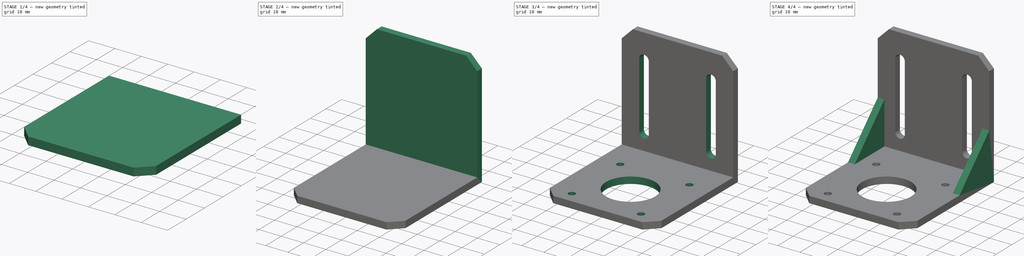
[diagram: build sequence overview — one tinted view per stage of 4, left to right]
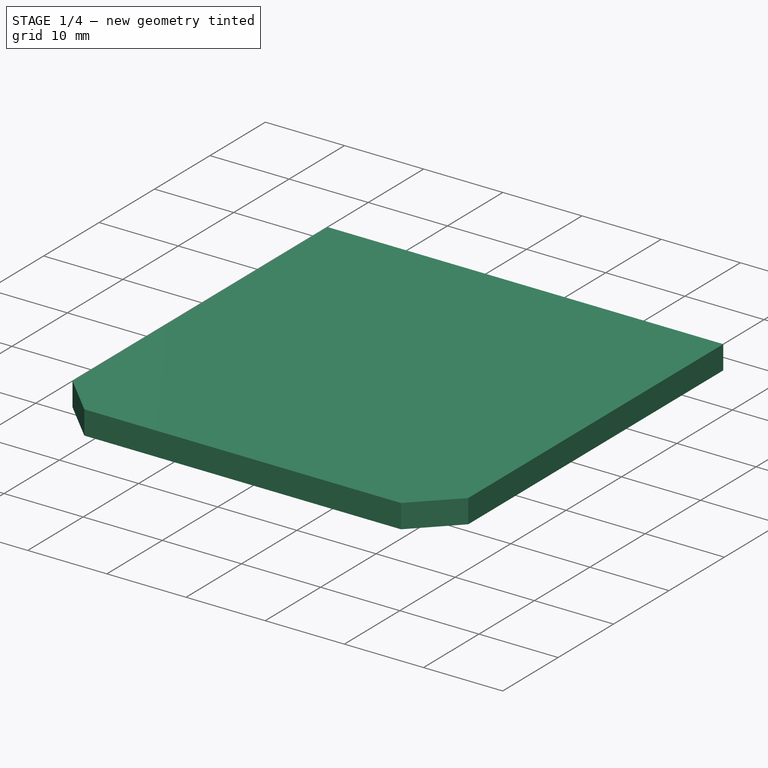
[diagram: stage 1 of 4 — iso view after this stage's code; geometry added in this stage tinted green]
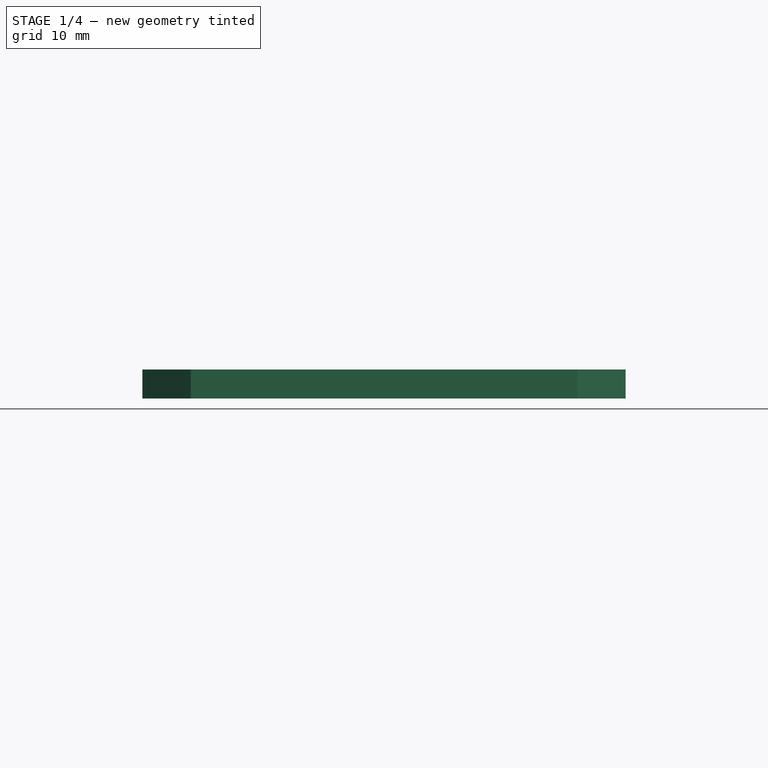
[diagram: stage 1 of 4 — front view after this stage's code; geometry added in this stage tinted green]
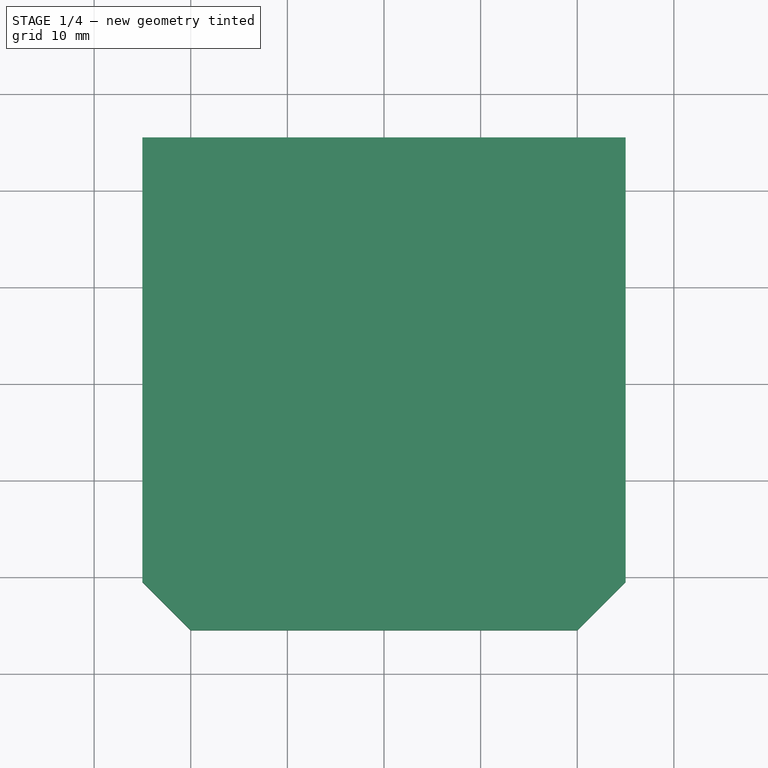
[diagram: stage 1 of 4 — top view after this stage's code; geometry added in this stage tinted green]
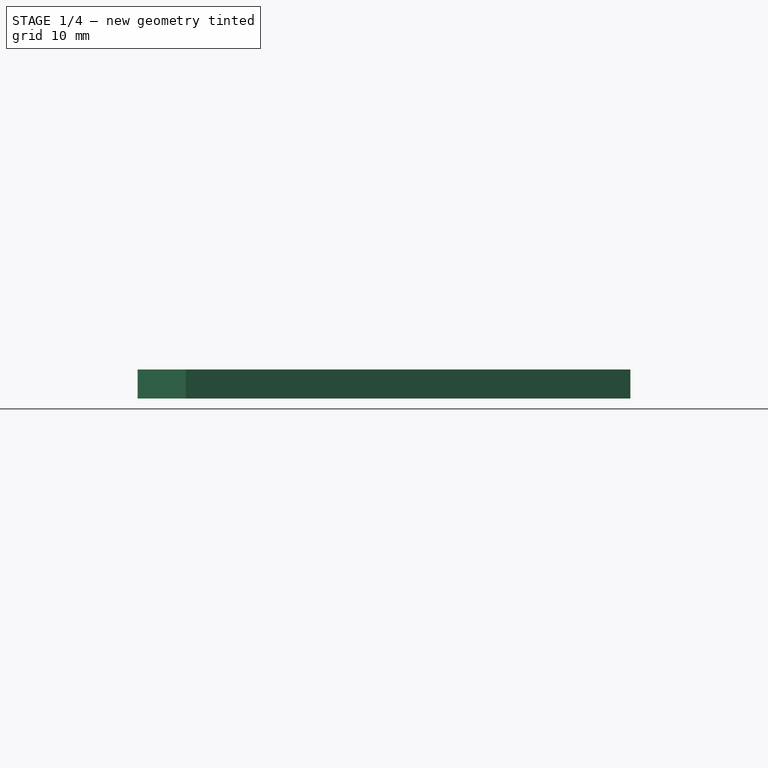
[diagram: stage 1 of 4 — right view after this stage's code; geometry added in this stage tinted green]
FCSTD DOCUMENT  (FreeCAD 0.19R)
Label: bracket_nema_17
License: All rights reserved
LicenseURL: http://en.wikipedia.org/wiki/All_rights_reserved
objects: PartDesign::CoordinateSystem×6, Sketcher::SketchObject×5, PartDesign::Pad×3, PartDesign::Pocket×3, PartDesign::Chamfer×2, PartDesign::Mirrored×1, PartDesign::Body×1
note: 29 computed .brp shape members not serialized (recipe doc carries the construction recipe); baked Part::Feature solids carry a one-line shape summary decoded from their .brp

FEATURE [Sketcher::SketchObject] Sketch
  FullyConstrained = true
  MapMode = 5
  Support = -> [XY_Plane]
  sketch-geometry (4):
    g0: LineSegment StartX=-25 StartY=25.5 StartZ=0 EndX=25 EndY=25.5 EndZ=0
    g1: LineSegment StartX=25 StartY=25.5 StartZ=0 EndX=25 EndY=-25.5 EndZ=0
    g2: LineSegment StartX=25 StartY=-25.5 StartZ=0 EndX=-25 EndY=-25.5 EndZ=0
    g3: LineSegment StartX=-25 StartY=-25.5 StartZ=0 EndX=-25 EndY=25.5 EndZ=0
  constraints (10):
    c: Coincident(g0,g1)
    c: Coincident(g1,g2)
    c: Coincident(g2,g3)
    c: Coincident(g3,g0)
    c: Symmetric(g0,g1,g-1)
    c: Symmetric(g0,g2,g-1)
    c: Vertical(g0,g1)
    c: Horizontal(g0,g0)
    c: DistanceX(g2,g2) = 50
    c: DistanceY(g1,g1) = 51
FEATURE [PartDesign::Pad] Pad
  Direction = (1,1,1)
  Length = 3
  Length2 = 100
  Profile = -> Sketch
  Refine = true
  Type = 0
FEATURE [PartDesign::Chamfer] Chamfer
  Angle = 45
  Base = -> Pad [Edge5,Edge8]
  BaseFeature = -> Pad
  ChamferType = 0
  FlipDirection = false
  Refine = true
  Size = 5
  Size2 = 1
  SupportTransform = false
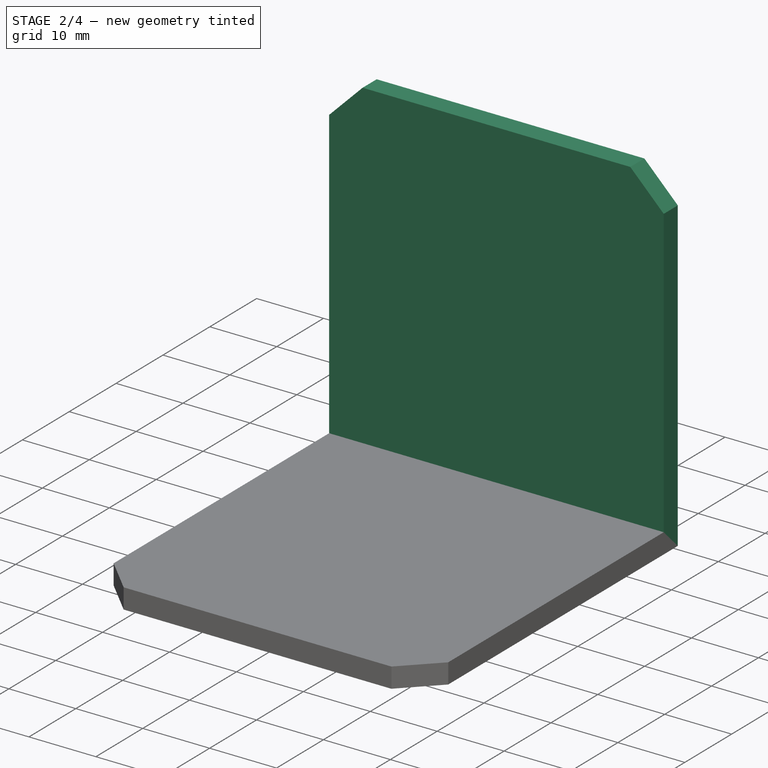
[diagram: stage 2 of 4 — iso view after this stage's code; geometry added in this stage tinted green]
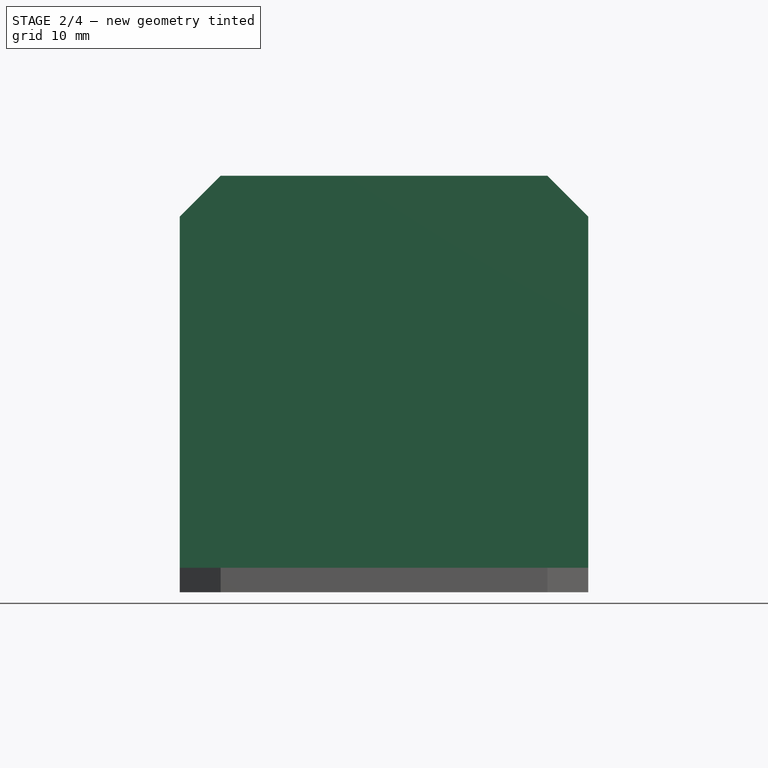
[diagram: stage 2 of 4 — front view after this stage's code; geometry added in this stage tinted green]
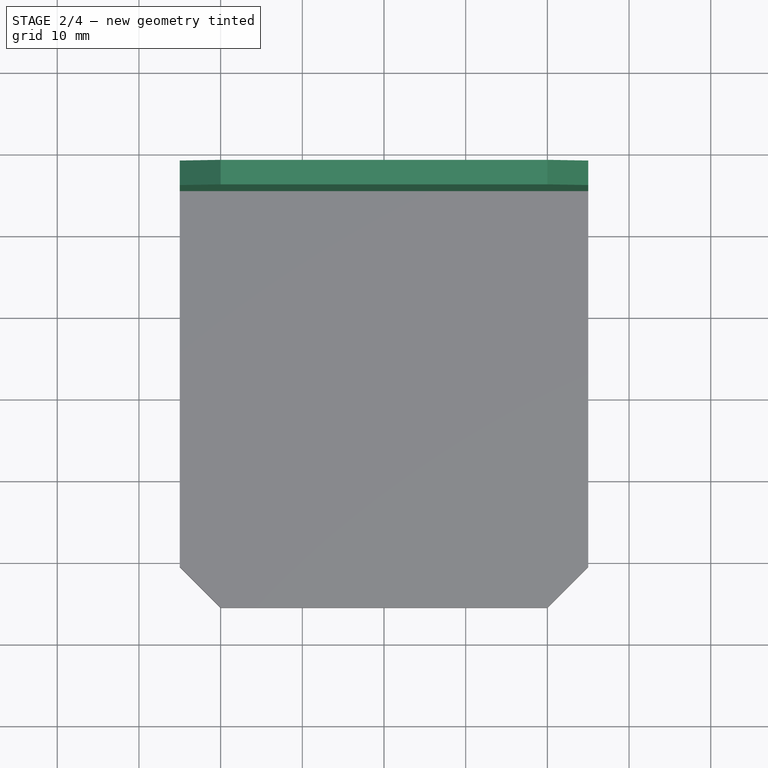
[diagram: stage 2 of 4 — top view after this stage's code; geometry added in this stage tinted green]
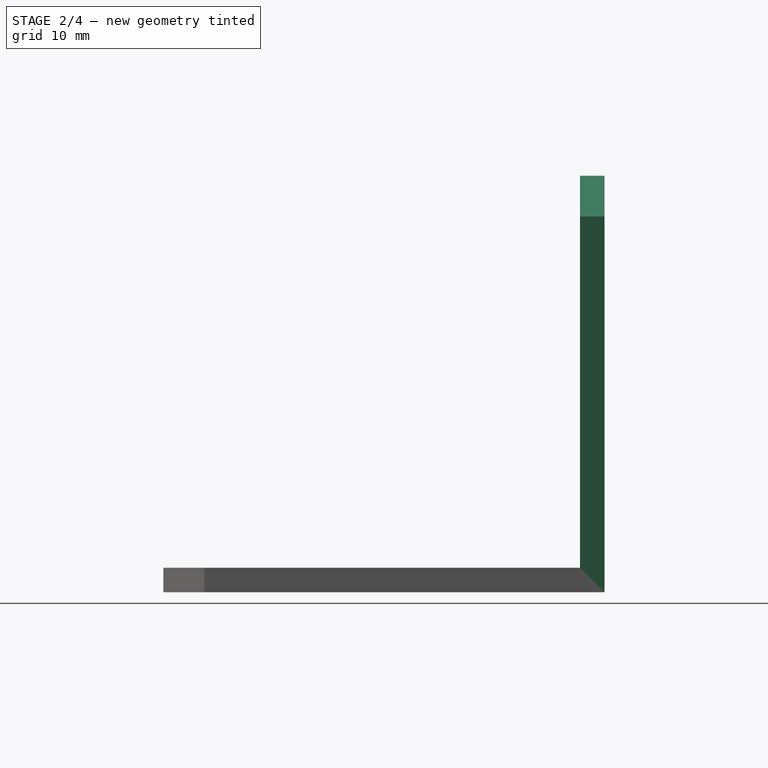
[diagram: stage 2 of 4 — right view after this stage's code; geometry added in this stage tinted green]
FEATURE [Sketcher::SketchObject] Sketch001
  ExternalGeometry = -> [Chamfer]
  FullyConstrained = true
  MapMode = 5
  Placement = pos=(0,25.5,0) rot=(0,0.707107,0.707107;3.14159rad)
  Support = -> [Chamfer]
  sketch-geometry (4):
    g0: LineSegment StartX=-25 StartY=0 StartZ=0 EndX=-25 EndY=51 EndZ=0
    g1: LineSegment StartX=-25 StartY=51 StartZ=0 EndX=25 EndY=51 EndZ=0
    g2: LineSegment StartX=25 StartY=51 StartZ=0 EndX=25 EndY=0 EndZ=0
    g3: LineSegment StartX=-25 StartY=0 StartZ=0 EndX=25 EndY=0 EndZ=0
  constraints (10):
    c: Coincident(g-3,g0)
    c: Vertical(g0)
    c: Coincident(g0,g1)
    c: Horizontal(g1)
    c: Coincident(g1,g2)
    c: Coincident(g2,g-3)
    c: Vertical(g2)
    c: DistanceY(g2,g2) = 51
    c: Coincident(g0,g3)
    c: Coincident(g3,g2)
FEATURE [PartDesign::Pad] Pad001
  BaseFeature = -> Chamfer
  Direction = (1,1,1)
  Length = 3
  Length2 = 100
  Profile = -> Sketch001
  Refine = true
  Type = 0
FEATURE [PartDesign::Chamfer] Chamfer001
  Angle = 45
  Base = -> Pad001 [Edge18,Edge17]
  BaseFeature = -> Pad001
  ChamferType = 0
  FlipDirection = false
  Refine = true
  Size = 5
  Size2 = 1
  SupportTransform = false
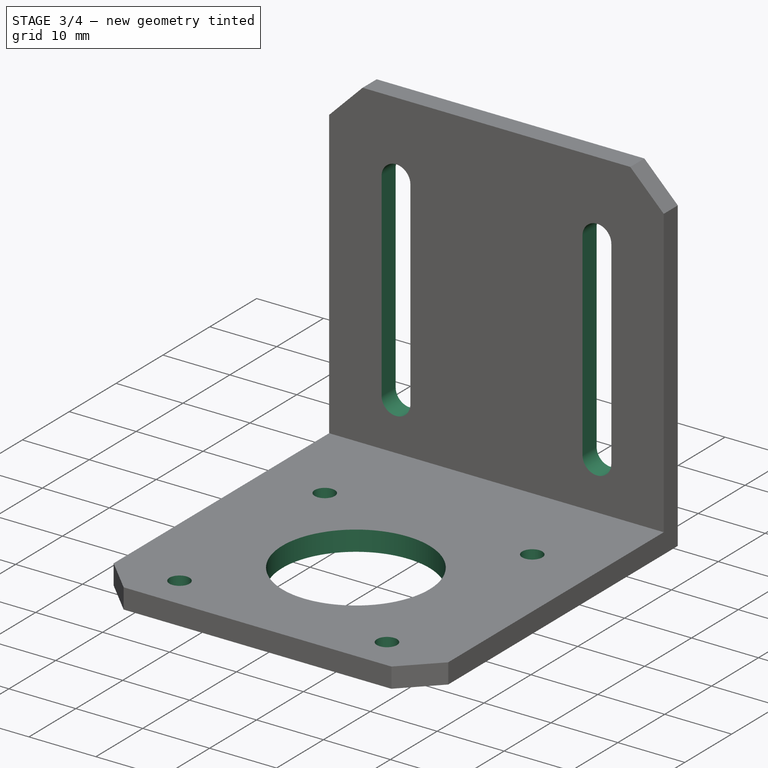
[diagram: stage 3 of 4 — iso view after this stage's code; geometry added in this stage tinted green]
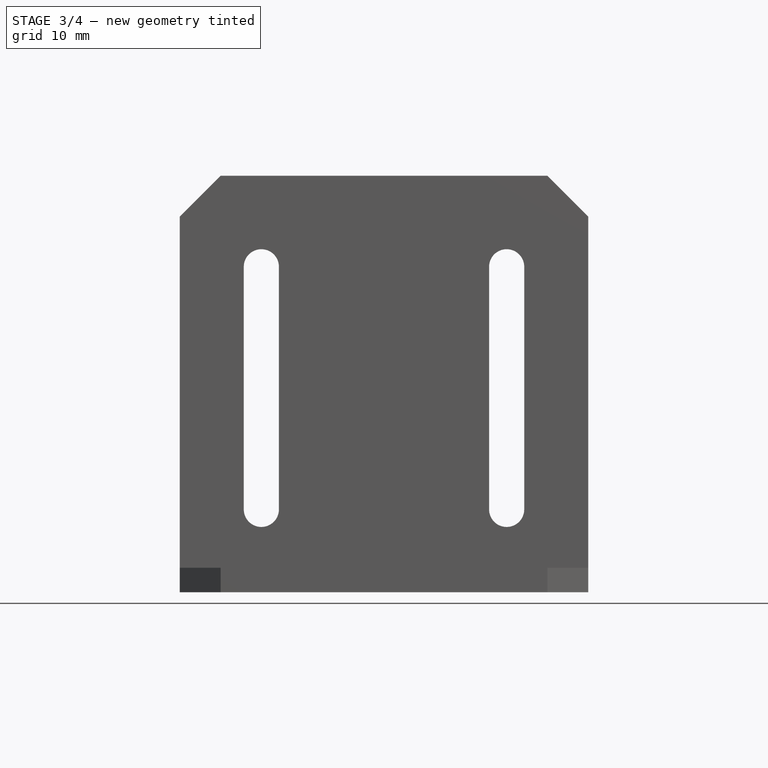
[diagram: stage 3 of 4 — front view after this stage's code; geometry added in this stage tinted green]
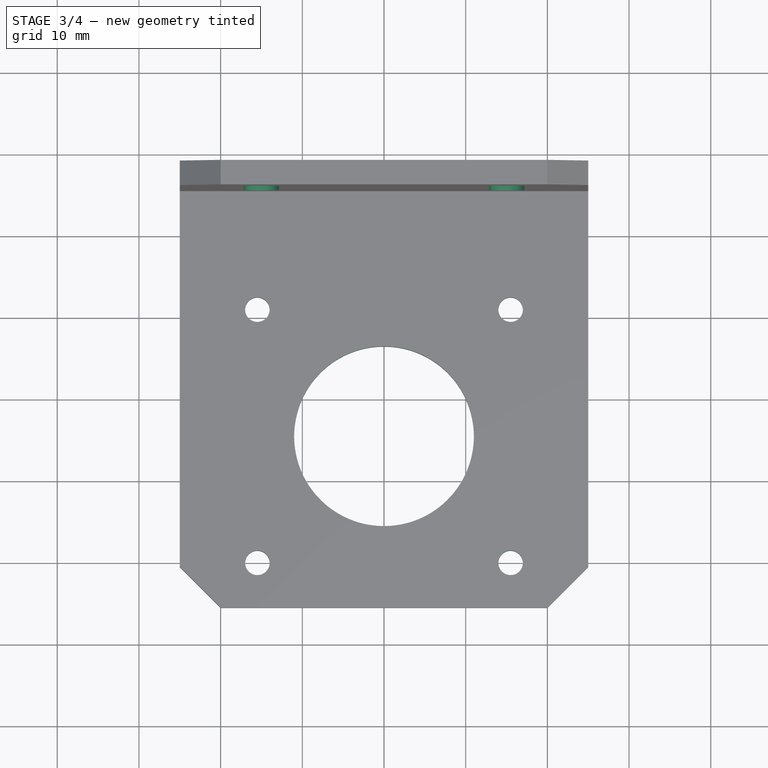
[diagram: stage 3 of 4 — top view after this stage's code; geometry added in this stage tinted green]
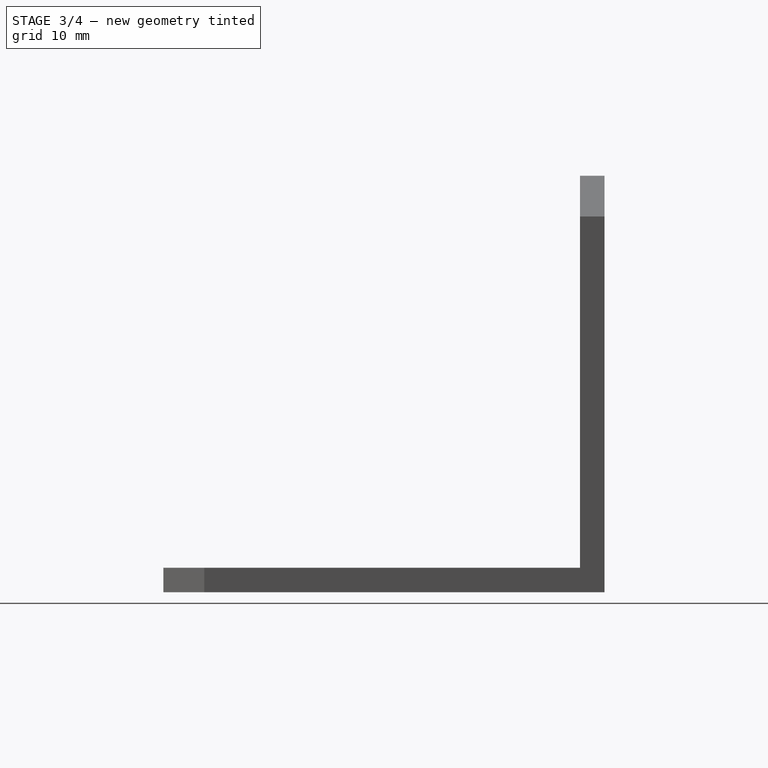
[diagram: stage 3 of 4 — right view after this stage's code; geometry added in this stage tinted green]
FEATURE [Sketcher::SketchObject] Sketch002
  ExternalGeometry = -> [Chamfer001]
  FullyConstrained = true
  MapMode = 5
  Placement = pos=(0,0,0) rot=(1,0,0;1.5708rad)
  Support = -> [XZ_Plane]
  sketch-geometry (4):
    g0: ArcOfCircle CenterX=-15.015 CenterY=39.85 CenterZ=0 NormalX=0 NormalY=0 NormalZ=1 AngleXU=0 Radius=2.15 StartAngle=-1.07e-14 EndAngle=3.14159
    g1: ArcOfCircle CenterX=-15.015 CenterY=10.15 CenterZ=0 NormalX=0 NormalY=0 NormalZ=1 AngleXU=0 Radius=2.15 StartAngle=3.14159 EndAngle=6.28319
    g2: LineSegment StartX=-17.165 StartY=39.85 StartZ=0 EndX=-17.165 EndY=10.15 EndZ=0
    g3: LineSegment StartX=-12.865 StartY=39.85 StartZ=0 EndX=-12.865 EndY=10.15 EndZ=0
  constraints (10):
    c: Tangent(g0,g3) = 1.5708
    c: Tangent(g0,g2) = -1.5708
    c: Tangent(g2,g1) = -1.5708
    c: Tangent(g3,g1) = 1.5708
    c: Vertical(g2)
    c: Equal(g0,g1)
    c: DistanceX(g0,g0) = 4.3
    c: DistanceY(g1,g0) = 29.7
    c: DistanceX(g1,g-1) = 12.865
    c: DistanceY(g0,g-3) = 11.15
FEATURE [PartDesign::Pocket] Pocket
  BaseFeature = -> Chamfer001
  Length = 5
  Length2 = 100
  Profile = -> Sketch002
  Refine = true
  Type = 1
FEATURE [PartDesign::Mirrored] Mirrored
  BaseFeature = -> Pocket
  MirrorPlane = -> Sketch002 [V_Axis]
  Originals = -> [Pocket]
  Refine = true
FEATURE [Sketcher::SketchObject] Sketch003
  ExternalGeometry = -> [Mirrored]
  FullyConstrained = true
  MapMode = 5
  Support = -> [XY_Plane]
  sketch-geometry (10):
    g0: LineSegment StartX=15.5 StartY=11 StartZ=0 EndX=-15.5 EndY=11 EndZ=0
    g1: LineSegment StartX=-15.5 StartY=11 StartZ=0 EndX=-15.5 EndY=-20 EndZ=0
    g2: LineSegment StartX=-15.5 StartY=-20 StartZ=0 EndX=15.5 EndY=-20 EndZ=0
    g3: LineSegment StartX=15.5 StartY=-20 StartZ=0 EndX=15.5 EndY=11 EndZ=0
    g4: Circle CenterX=0 CenterY=-4.5 CenterZ=0 NormalX=0 NormalY=0 NormalZ=1 AngleXU=0 Radius=21.9203
    g5: Circle CenterX=-15.5 CenterY=11 CenterZ=0 NormalX=0 NormalY=0 NormalZ=1 AngleXU=0 Radius=1.5
    g6: Circle CenterX=15.5 CenterY=11 CenterZ=0 NormalX=0 NormalY=0 NormalZ=1 AngleXU=0 Radius=1.5
    g7: Circle CenterX=15.5 CenterY=-20 CenterZ=0 NormalX=0 NormalY=0 NormalZ=1 AngleXU=0 Radius=1.5
    g8: Circle CenterX=-15.5 CenterY=-20 CenterZ=0 NormalX=0 NormalY=0 NormalZ=1 AngleXU=0 Radius=1.5
    g9: Circle CenterX=0 CenterY=-4.5 CenterZ=0 NormalX=0 NormalY=0 NormalZ=1 AngleXU=0 Radius=11
  constraints (24):
    c: Coincident(g0,g1)
    c: Coincident(g1,g2)
    c: Coincident(g2,g3)
    c: Coincident(g3,g0)
    c: Equal(g0,g1)
    c: Equal(g0,g2)
    c: Equal(g0,g3)
    c: PointOnObject(g0,g4)
    c: PointOnObject(g1,g4)
    c: PointOnObject(g2,g4)
    c: PointOnObject(g3,g4)
    c: DistanceX(g2,g2) = 31
    c: Coincident(g5,g0)
    c: Coincident(g6,g0)
    c: Coincident(g7,g2)
    c: Coincident(g8,g1)
    c: Equal(g5,g7)
    c: Equal(g7,g6)
    c: Equal(g6,g8)
    c: Diameter(g6) = 3
    c: Symmetric(g7,g8,g-2)
    c: DistanceY(g-3,g4) = 21
    c: Coincident(g9,g4)
    c: Diameter(g9) = 22
FEATURE [PartDesign::Pocket] Pocket001
  BaseFeature = -> Mirrored
  Length = 5
  Length2 = 100
  Midplane = true
  Profile = -> Sketch003
  Refine = true
  Type = 1
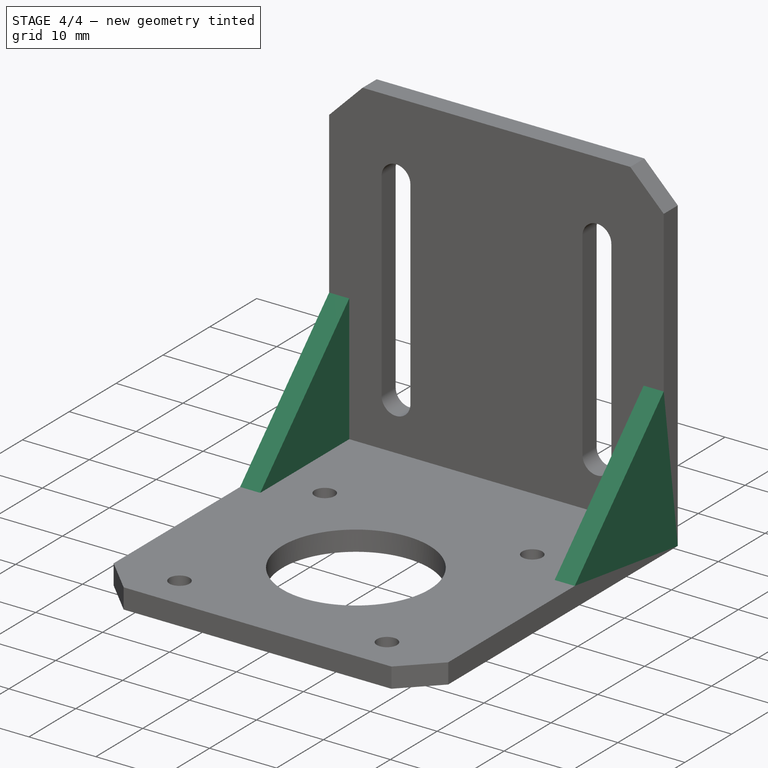
[diagram: stage 4 of 4 — iso view after this stage's code; geometry added in this stage tinted green]
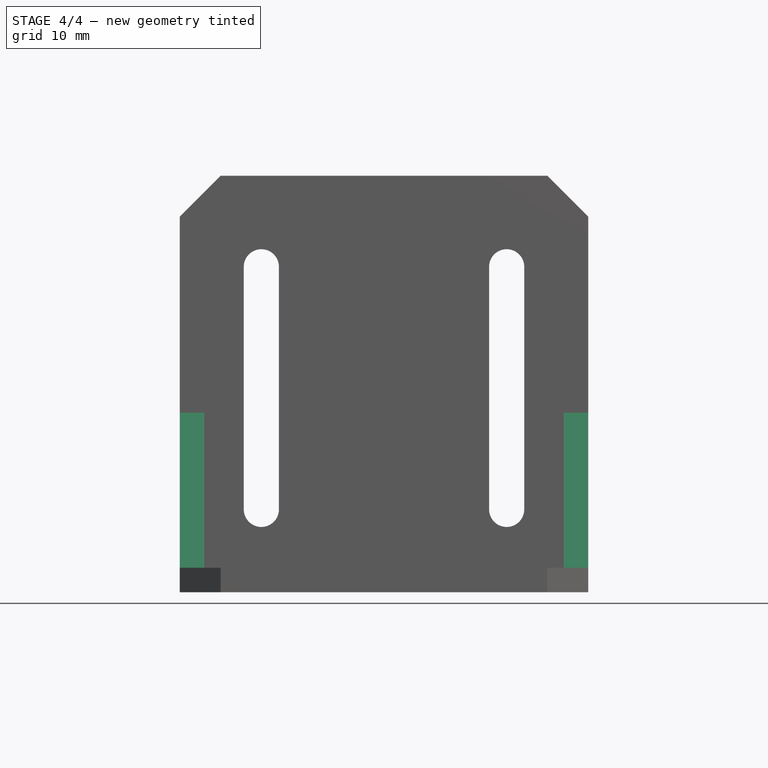
[diagram: stage 4 of 4 — front view after this stage's code; geometry added in this stage tinted green]
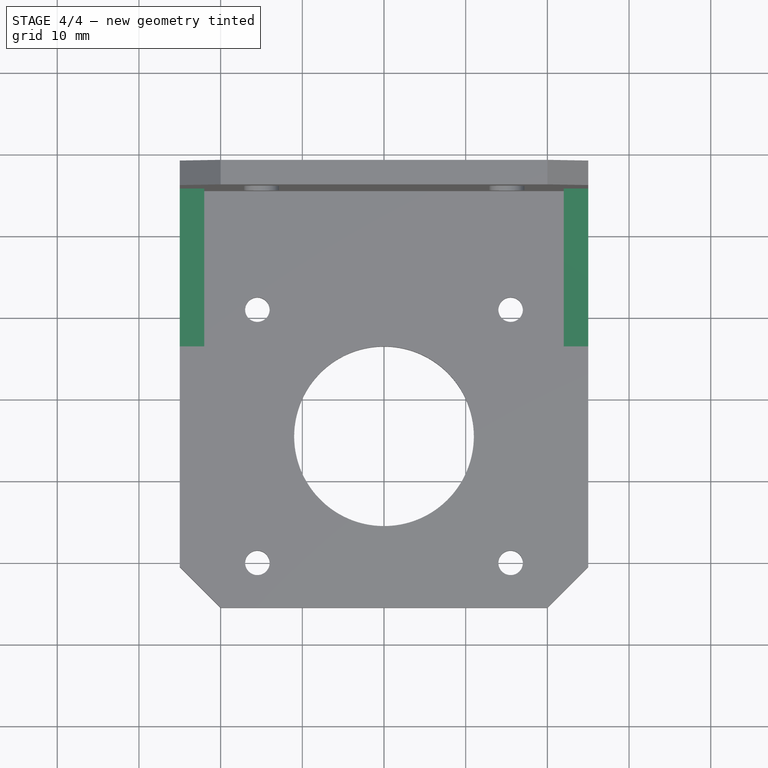
[diagram: stage 4 of 4 — top view after this stage's code; geometry added in this stage tinted green]
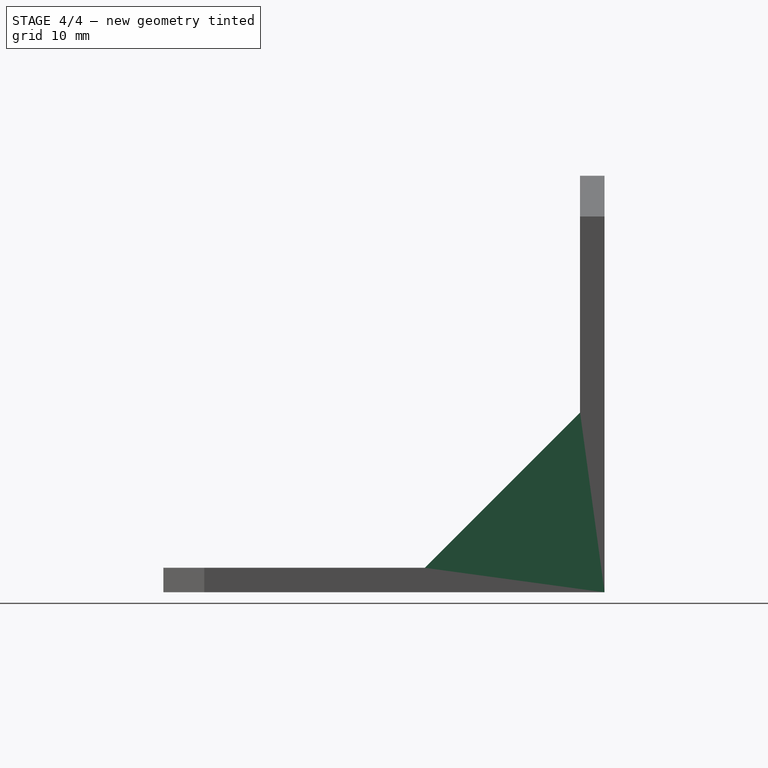
[diagram: stage 4 of 4 — right view after this stage's code; geometry added in this stage tinted green]
FEATURE [Sketcher::SketchObject] Sketch004
  ExternalGeometry = -> [Pocket001]
  FullyConstrained = true
  MapMode = 5
  Placement = pos=(0,0,0) rot=(0.57735,0.57735,0.57735;2.0944rad)
  Support = -> [YZ_Plane]
  sketch-geometry (3):
    g0: LineSegment StartX=25.5 StartY=22 StartZ=0 EndX=6.5 EndY=3 EndZ=0
    g1: LineSegment StartX=6.5 StartY=3 StartZ=0 EndX=25.5 EndY=3 EndZ=0
    g2: LineSegment StartX=25.5 StartY=22 StartZ=0 EndX=25.5 EndY=3 EndZ=0
  constraints (8):
    c: PointOnObject(g0,g-3)
    c: PointOnObject(g0,g-4)
    c: Coincident(g1,g0)
    c: Coincident(g1,g-4)
    c: Coincident(g2,g0)
    c: Coincident(g2,g1)
    c: Equal(g2,g1)
    c: DistanceX(g1,g1) = 19
FEATURE [PartDesign::Pad] Pad002
  BaseFeature = -> Pocket001
  Direction = (1,1,1)
  Length = 50
  Length2 = 100
  Midplane = true
  Offset = -3
  Profile = -> Sketch004
  Refine = true
  Type = 0
FEATURE [PartDesign::Pocket] Pocket002
  BaseFeature = -> Pad002
  Length = 44
  Length2 = 100
  Midplane = true
  Profile = -> Sketch004
  Refine = true
  Type = 0
FEATURE [PartDesign::CoordinateSystem] Local_CS
  AttacherType = Attacher::AttachEngine3D
  MapMode = 11
  Placement = pos=(0,-4.5,3) rot=(0,0,1;3.14159rad)
  Support = -> [Pocket002]
FEATURE [PartDesign::CoordinateSystem] Local_CS001
  AttacherType = Attacher::AttachEngine3D
  MapMode = 11
  Placement = pos=(0,-4.5,0) rot=(0,0,1;1.5708rad)
  Support = -> [Pocket002]
FEATURE [PartDesign::CoordinateSystem] Local_CS002
  AttacherType = Attacher::AttachEngine3D
  MapMode = 11
  Placement = pos=(15.015,28.5,10.15) rot=(0.57735,0.57735,-0.57735;2.0944rad)
  Support = -> [Pocket002]
FEATURE [PartDesign::CoordinateSystem] Local_CS003
  AttacherType = Attacher::AttachEngine3D
  MapMode = 11
  Placement = pos=(-15.015,28.5,39.85) rot=(0.57735,-0.57735,0.57735;2.0944rad)
  Support = -> [Pocket002]
FEATURE [PartDesign::CoordinateSystem] Local_CS004
  AttacherType = Attacher::AttachEngine3D
  MapMode = 11
  Placement = pos=(15.015,28.5,39.85) rot=(0.57735,-0.57735,0.57735;2.0944rad)
  Support = -> [Pocket002]
FEATURE [PartDesign::CoordinateSystem] Local_CS005
  AttacherType = Attacher::AttachEngine3D
  MapMode = 11
  Placement = pos=(-15.015,28.5,10.15) rot=(0.57735,0.57735,-0.57735;2.0944rad)
  Support = -> [Pocket002]
FEATURE [PartDesign::Body] Body
  Group = -> [Sketch,Pad,Chamfer,Sketch001,Pad001,Chamfer001,Sketch002,Pocket,Mirrored,Sketch003,Pocket001,Sketch004,Pad002,Pocket002,Local_CS,Local_CS001,Local_CS002,Local_CS003,Local_CS004,Local_CS005]
  Origin = -> Origin
  Tip = -> Pocket002
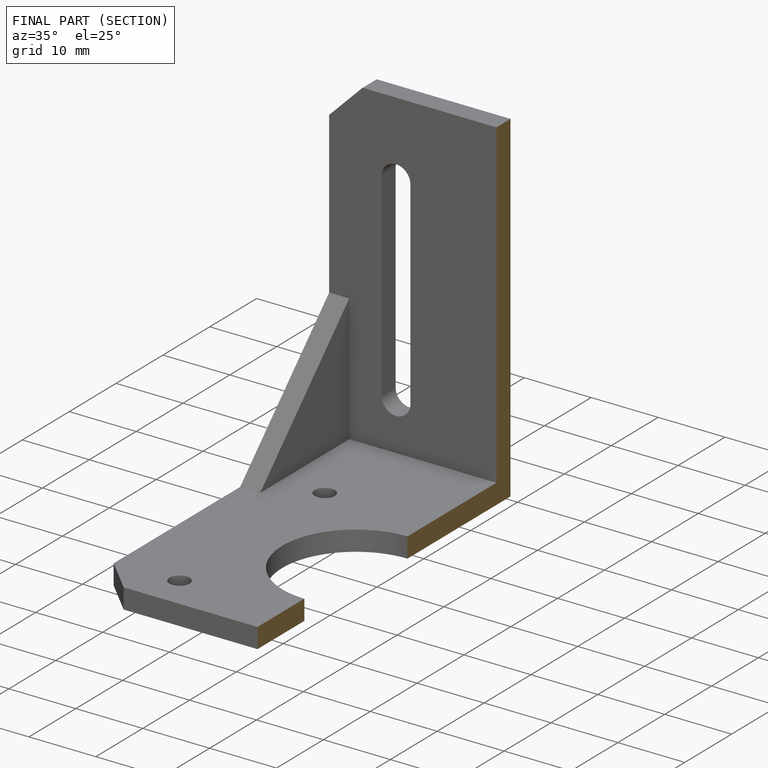
[diagram: finished part — half-section view (interior)]
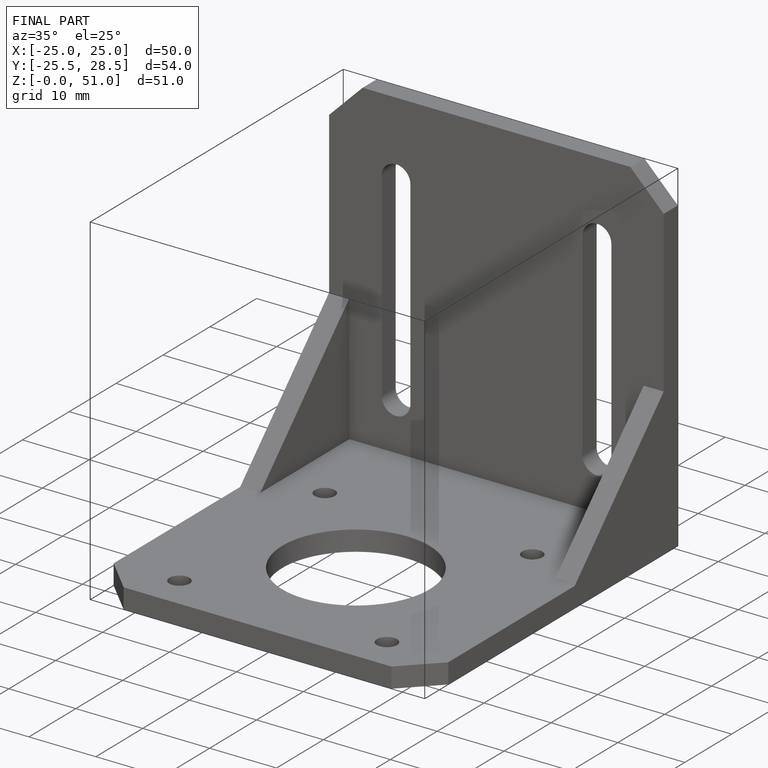
[diagram: finished part — iso view with bounding-box wireframe]
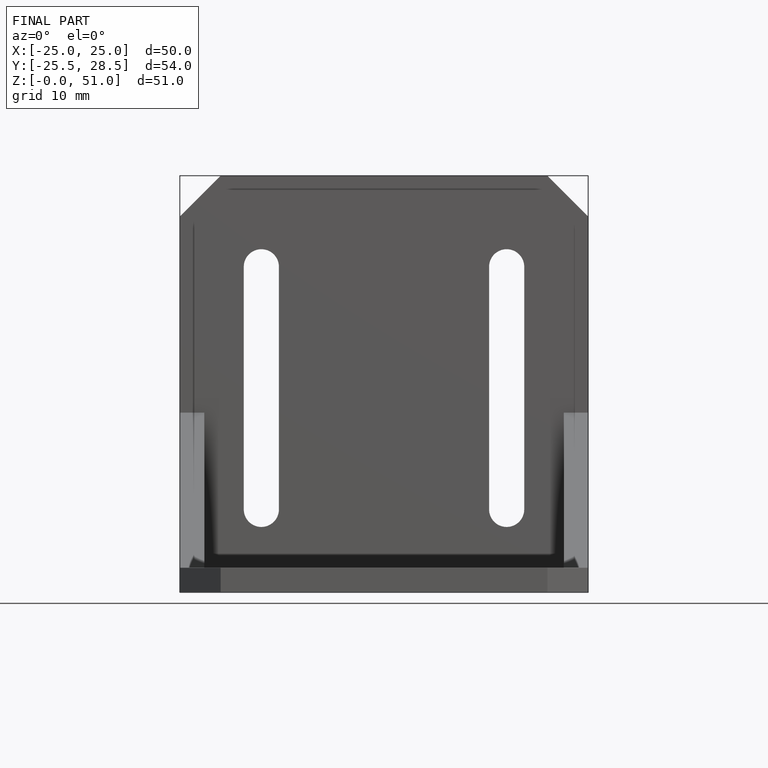
[diagram: finished part — front view with bounding-box wireframe]
